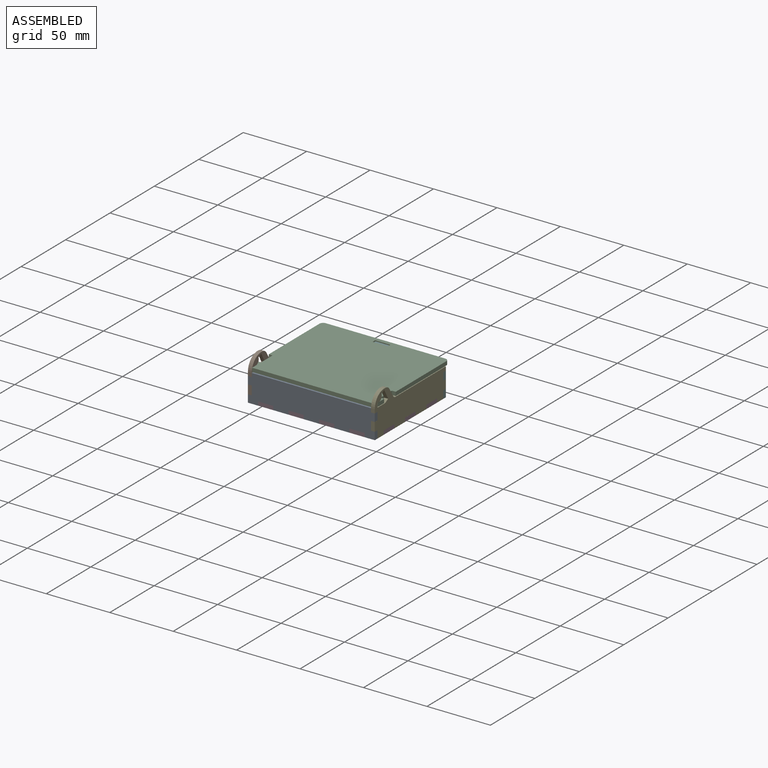
[diagram: assembled view]
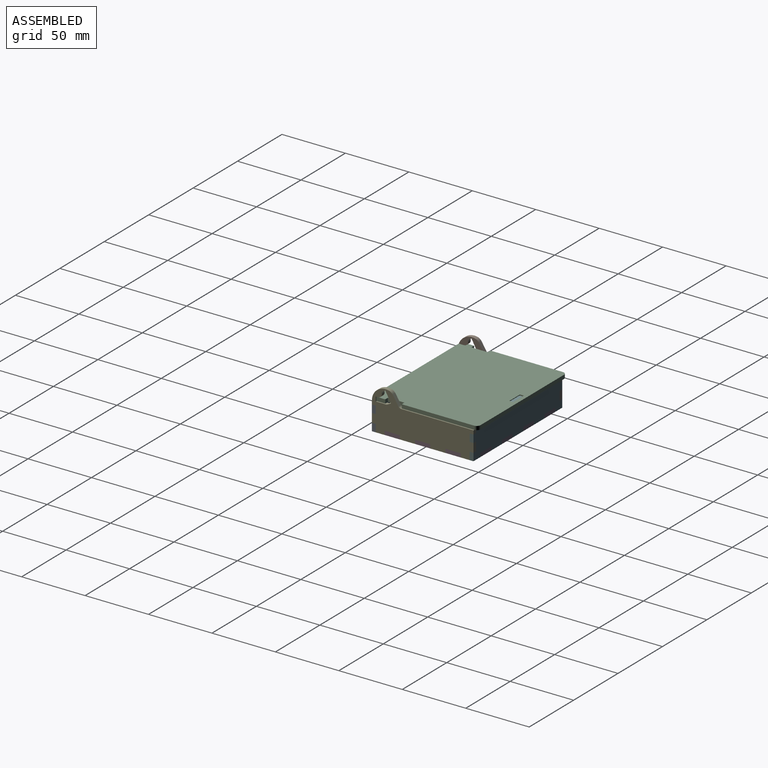
[diagram: assembled view, second angle]
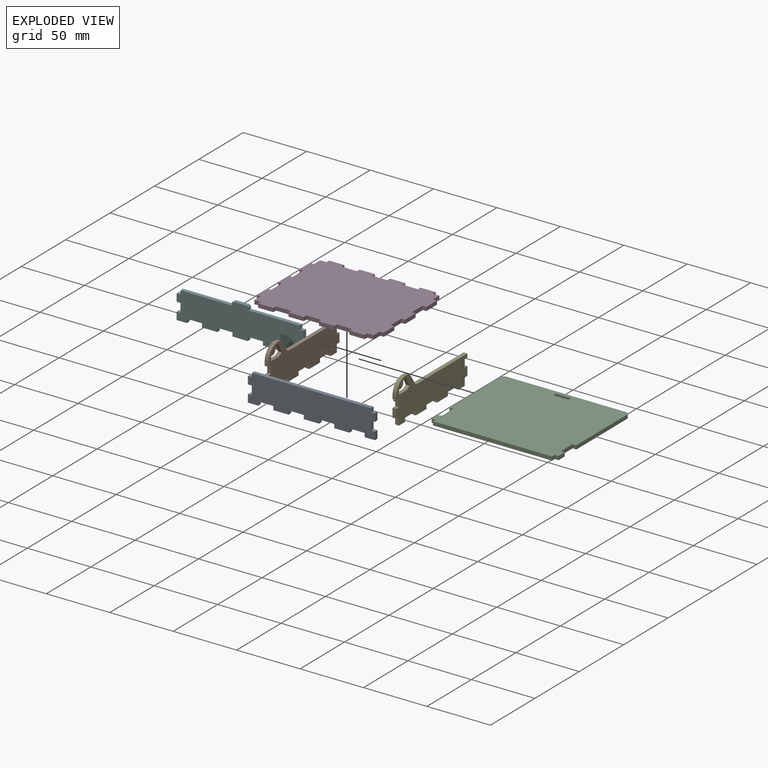
[diagram: exploded view]
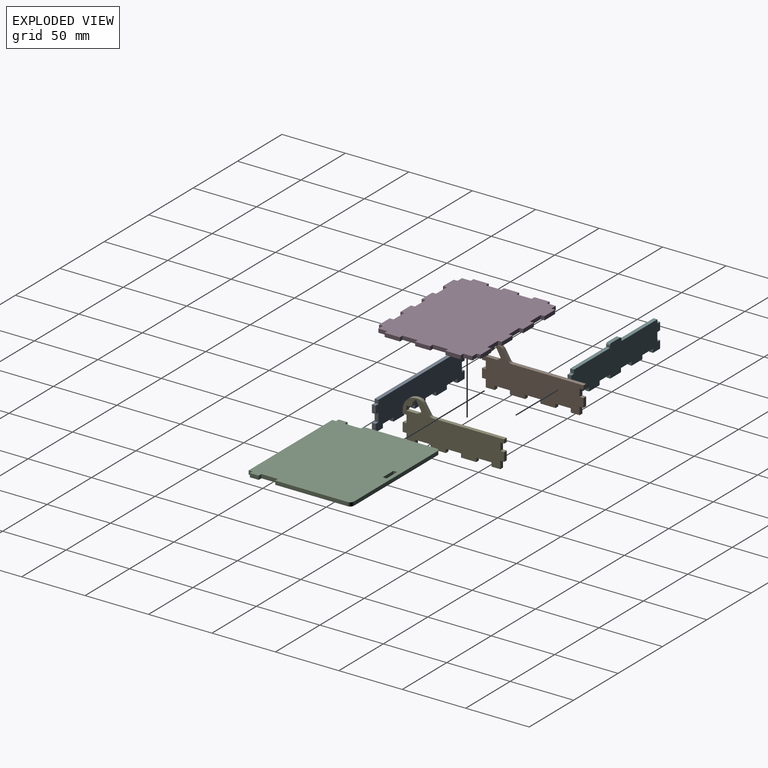
[diagram: exploded view, second angle]
ASSEMBLY  parts=6 mates=5
PART A: 34 faces, bbox 22x100x3 mm
  f0: plane 12x3mm, normal (-1,0,0), area 36mm2, adj f1,f31,f32,f33
  f1: plane 3x3mm, normal (0,1,0), area 9mm2, adj f0,f2,f32,f33
  f2: plane 12x3mm, normal (-1,0,0), area 36mm2, adj f1,f3,f32,f33
  f3: plane 3x3mm, normal (0,-1,0), area 9mm2, adj f2,f4,f32,f33
  f4: plane 12x3mm, normal (-1,0,0), area 36mm2, adj f3,f5,f32,f33
  f5: plane 3x3mm, normal (0,1,0), area 9mm2, adj f4,f6,f32,f33
  f6: plane 12x3mm, normal (-1,0,0), area 36mm2, adj f5,f7,f32,f33
  f7: plane 3x3mm, normal (0,-1,0), area 9mm2, adj f6,f8,f32,f33
  f8: plane 12x3mm, normal (-1,0,0), area 36mm2, adj f7,f9,f32,f33
  f9: plane 3x3mm, normal (0,1,0), area 9mm2, adj f8,f10,f32,f33
  f10: plane 8x3mm, normal (-1,0,0), area 24mm2, adj f9,f11,f32,f33
  f11: plane 6x3mm, normal (0,-1,0), area 18mm2, adj f10,f12,f32,f33
  f12: plane 3x3mm, normal (1,0,0), area 9mm2, adj f11,f13,f32,f33
  f13: plane 7x3mm, normal (0,-1,0), area 21mm2, adj f12,f14,f32,f33
  f14: plane 3x3mm, normal (-1,0,0), area 9mm2, adj f13,f15,f32,f33
  f15: plane 6x3mm, normal (0,-1,0), area 18mm2, adj f14,f16,f32,f33
  f16: plane 3x3mm, normal (1,0,0), area 9mm2, adj f15,f17,f32,f33
  f17: plane 3x3mm, normal (0,-1,0), area 9mm2, adj f16,f18,f32,f33
  f18: plane 94x3mm, normal (1,0,0), area 282mm2, adj f17,f19,f32,f33
  f19: plane 3x3mm, normal (0,1,0), area 9mm2, adj f18,f20,f32,f33
  f20: plane 3x3mm, normal (1,0,0), area 9mm2, adj f19,f21,f32,f33
  f21: plane 6x3mm, normal (0,1,0), area 18mm2, adj f20,f22,f32,f33
  f22: plane 3x3mm, normal (-1,0,0), area 9mm2, adj f21,f23,f32,f33
  f23: plane 7x3mm, normal (0,1,0), area 21mm2, adj f22,f24,f32,f33
  f24: plane 3x3mm, normal (1,0,0), area 9mm2, adj f23,f25,f32,f33
  f25: plane 6x3mm, normal (0,1,0), area 18mm2, adj f24,f26,f32,f33
  f26: plane 8x3mm, normal (-1,0,0), area 24mm2, adj f25,f27,f32,f33
  f27: plane 3x3mm, normal (0,-1,0), area 9mm2, adj f26,f28,f32,f33
  f28: plane 12x3mm, normal (-1,0,0), area 36mm2, adj f27,f29,f32,f33
  f29: plane 3x3mm, normal (0,1,0), area 9mm2, adj f28,f30,f32,f33
  f30: plane 12x3mm, normal (-1,0,0), area 36mm2, adj f29,f31,f32,f33
  f31: plane 3x3mm, normal (0,-1,0), area 9mm2, adj f0,f30,f32,f33
  f32: plane 100x22mm, normal (0,0,1), area 1996mm2, adj f0,f1,f2,f3,f4,f5,f6,f7
  f33: plane 100x22mm, normal (0,0,-1), area 1996mm2, adj f0,f1,f2,f3,f4,f5,f6,f7
PART B: 41 faces, bbox 32.8x80x3 mm
  f0: plane 3.5x3mm, normal (0,1,0), area 10.5mm2, adj f1,f38,f39,f40
  f1: plane 8.7x3mm, normal (-1,0,0), area 26.1mm2, adj f0,f2,f39,f40
  f2: plane 3.27x3mm, normal (-0.88,-0.48,0), area 11.2mm2, adj f1,f3,f39,f40
  f3: plane 8x4.38mm, normal (0.48,-0.88,0), area 27.4mm2, adj f2,f4,f39,f40
  f4: plane 3.07x3mm, normal (0.88,0.48,0), area 10.5mm2, adj f3,f5,f39,f40
  f5: cylinder r=3.19mm len=4.61mm, axis (0,0,1), area 19.4mm2, adj f4,f38,f39,f40
  f6: plane 3x3mm, normal (0,-1,0), area 9mm2, adj f7,f37,f39,f40
  f7: plane 12x3mm, normal (1,0,0), area 36mm2, adj f6,f8,f39,f40
  f8: plane 3x3mm, normal (0,1,0), area 9mm2, adj f7,f9,f39,f40
  f9: plane 12x3mm, normal (1,0,0), area 36mm2, adj f8,f10,f39,f40
  f10: plane 3x3mm, normal (0,-1,0), area 9mm2, adj f9,f11,f39,f40
  f11: plane 12x3mm, normal (1,0,0), area 36mm2, adj f10,f12,f39,f40
  f12: plane 3x3mm, normal (0,1,0), area 9mm2, adj f11,f13,f39,f40
  f13: plane 12x3mm, normal (1,0,0), area 36mm2, adj f12,f14,f39,f40
  f14: plane 3x3mm, normal (0,-1,0), area 9mm2, adj f13,f15,f39,f40
  f15: plane 12x3mm, normal (1,0,0), area 36mm2, adj f14,f16,f39,f40
  f16: plane 3x3mm, normal (0,1,0), area 9mm2, adj f15,f17,f39,f40
  f17: plane 7x3mm, normal (1,0,0), area 21mm2, adj f16,f18,f39,f40
  f18: plane 6x3mm, normal (0,-1,0), area 18mm2, adj f17,f19,f39,f40
  f19: plane 3x3mm, normal (1,0,0), area 9mm2, adj f18,f20,f39,f40
  f20: plane 7x3mm, normal (0,-1,0), area 21mm2, adj f19,f21,f39,f40
  f21: plane 3x3mm, normal (-1,0,0), area 9mm2, adj f20,f22,f39,f40
  f22: plane 6x3mm, normal (0,-1,0), area 18mm2, adj f21,f23,f39,f40
  f23: plane 3x3mm, normal (1,0,0), area 9mm2, adj f22,f24,f39,f40
  f24: plane 3x3mm, normal (0,-1,0), area 9mm2, adj f23,f25,f39,f40
  f25: cylinder r=10.81mm len=13.37mm, axis (0,0,1), area 58.7mm2, adj f24,f26,f39,f40
  f26: cylinder r=5mm len=3.05mm, axis (0,0,1), area 11.6mm2, adj f25,f27,f39,f40
  f27: plane 7.01x4.41mm, normal (-0.53,0.85,0), area 24.9mm2, adj f26,f28,f39,f40
  f28: cylinder r=2.79mm len=3mm, axis (0,0,1), area 7.9mm2, adj f27,f29,f39,f40
  f29: plane 56.98x3mm, normal (-1,0,0), area 170.9mm2, adj f28,f30,f39,f40
  f30: plane 3x3mm, normal (0,1,0), area 9mm2, adj f29,f31,f39,f40
  f31: plane 3x3mm, normal (1,0,0), area 9mm2, adj f30,f32,f39,f40
  f32: plane 6x3mm, normal (0,1,0), area 18mm2, adj f31,f33,f39,f40
  f33: plane 3x3mm, normal (-1,0,0), area 9mm2, adj f32,f34,f39,f40
  f34: plane 7x3mm, normal (0,1,0), area 21mm2, adj f33,f35,f39,f40
  f35: plane 3x3mm, normal (1,0,0), area 9mm2, adj f34,f36,f39,f40
  f36: plane 6x3mm, normal (0,1,0), area 18mm2, adj f35,f37,f39,f40
  f37: plane 7x3mm, normal (1,0,0), area 21mm2, adj f6,f36,f39,f40
  f38: plane 3x1.66mm, normal (1,0,0), area 5mm2, adj f0,f5,f39,f40
  f39: plane 80x32.81mm, normal (0,0,-1), area 1684.4mm2, adj f0,f1,f2,f3,f4,f5,f6,f7
  f40: plane 80x32.81mm, normal (0,0,1), area 1684.4mm2, adj f0,f1,f2,f3,f4,f5,f6,f7
PART C: 24 faces, bbox 100x83x3 mm
  f0: plane 3x3mm, normal (0,-1,0), area 9mm2, adj f1,f21,f22,f23
  f1: plane 3x3mm, normal (-1,0,0), area 9mm2, adj f0,f2,f22,f23
  f2: plane 94x3mm, normal (0,-1,0), area 282mm2, adj f1,f3,f22,f23
  f3: plane 3x3mm, normal (1,0,0), area 9mm2, adj f2,f4,f22,f23
  f4: plane 3x3mm, normal (0,-1,0), area 9mm2, adj f3,f5,f22,f23
  f5: plane 7x3mm, normal (1,0,0), area 21mm2, adj f4,f6,f22,f23
  f6: plane 3x3mm, normal (0,1,0), area 9mm2, adj f5,f7,f22,f23
  f7: plane 13.02x3mm, normal (1,0,0), area 39.1mm2, adj f6,f8,f22,f23
  f8: plane 3x3mm, normal (0,-1,0), area 9mm2, adj f7,f9,f22,f23
  f9: plane 56.98x3mm, normal (1,0,0), area 170.9mm2, adj f8,f10,f22,f23
  f10: cylinder r=3mm len=3mm, axis (0,0,-1), area 14.1mm2, adj f9,f11,f22,f23
  f11: plane 94x3mm, normal (0,1,0), area 282mm2, adj f10,f12,f22,f23
  f12: cylinder r=3mm len=3mm, axis (0,0,-1), area 14.1mm2, adj f11,f13,f22,f23
  f13: plane 56.98x3mm, normal (-1,0,0), area 170.9mm2, adj f12,f14,f22,f23
  f14: plane 3x3mm, normal (0,-1,0), area 9mm2, adj f13,f15,f22,f23
  f15: plane 13.02x3mm, normal (-1,0,0), area 39.1mm2, adj f14,f16,f22,f23
  f16: plane 3x3mm, normal (0,1,0), area 9mm2, adj f15,f21,f22,f23
  f17: plane 3x3mm, normal (1,0,0), area 9mm2, adj f18,f20,f22,f23
  f18: plane 12x3mm, normal (0,-1,0), area 36mm2, adj f17,f19,f22,f23
  f19: plane 3x3mm, normal (-1,0,0), area 9mm2, adj f18,f20,f22,f23
  f20: plane 12x3mm, normal (0,1,0), area 36mm2, adj f17,f19,f22,f23
  f21: plane 7x3mm, normal (-1,0,0), area 21mm2, adj f0,f16,f22,f23
  f22: plane 100x83mm, normal (0,0,1), area 8164mm2, adj f0,f1,f2,f3,f4,f5,f6,f7
  f23: plane 100x83mm, normal (0,0,-1), area 8164mm2, adj f0,f1,f2,f3,f4,f5,f6,f7
PART D: 62 faces, bbox 100x80x3 mm
  f0: plane 5x3mm, normal (0,1,0), area 15mm2, adj f1,f59,f60,f61
  f1: plane 3x3mm, normal (1,0,0), area 9mm2, adj f0,f2,f60,f61
  f2: plane 12x3mm, normal (0,1,0), area 36mm2, adj f1,f3,f60,f61
  f3: plane 3x3mm, normal (-1,0,0), area 9mm2, adj f2,f4,f60,f61
  f4: plane 12x3mm, normal (0,1,0), area 36mm2, adj f3,f5,f60,f61
  f5: plane 3x3mm, normal (1,0,0), area 9mm2, adj f4,f6,f60,f61
  f6: plane 12x3mm, normal (0,1,0), area 36mm2, adj f5,f7,f60,f61
  f7: plane 3x3mm, normal (-1,0,0), area 9mm2, adj f6,f8,f60,f61
  f8: plane 12x3mm, normal (0,1,0), area 36mm2, adj f7,f9,f60,f61
  f9: plane 3x3mm, normal (1,0,0), area 9mm2, adj f8,f10,f60,f61
  f10: plane 12x3mm, normal (0,1,0), area 36mm2, adj f9,f11,f60,f61
  f11: plane 3x3mm, normal (-1,0,0), area 9mm2, adj f10,f12,f60,f61
  f12: plane 12x3mm, normal (0,1,0), area 36mm2, adj f11,f13,f60,f61
  f13: plane 3x3mm, normal (1,0,0), area 9mm2, adj f12,f14,f60,f61
  f14: plane 12x3mm, normal (0,1,0), area 36mm2, adj f13,f15,f60,f61
  f15: plane 3x3mm, normal (-1,0,0), area 9mm2, adj f14,f16,f60,f61
  f16: plane 5x3mm, normal (0,1,0), area 15mm2, adj f15,f17,f60,f61
  f17: plane 7x3mm, normal (-1,0,0), area 21mm2, adj f16,f18,f60,f61
  f18: plane 3x3mm, normal (0,1,0), area 9mm2, adj f17,f19,f60,f61
  f19: plane 12x3mm, normal (-1,0,0), area 36mm2, adj f18,f20,f60,f61
  f20: plane 3x3mm, normal (0,-1,0), area 9mm2, adj f19,f21,f60,f61
  f21: plane 12x3mm, normal (-1,0,0), area 36mm2, adj f20,f22,f60,f61
  f22: plane 3x3mm, normal (0,1,0), area 9mm2, adj f21,f23,f60,f61
  f23: plane 12x3mm, normal (-1,0,0), area 36mm2, adj f22,f24,f60,f61
  f24: plane 3x3mm, normal (0,-1,0), area 9mm2, adj f23,f25,f60,f61
  f25: plane 12x3mm, normal (-1,0,0), area 36mm2, adj f24,f26,f60,f61
  f26: plane 3x3mm, normal (0,1,0), area 9mm2, adj f25,f27,f60,f61
  f27: plane 12x3mm, normal (-1,0,0), area 36mm2, adj f26,f28,f60,f61
  f28: plane 3x3mm, normal (0,-1,0), area 9mm2, adj f27,f29,f60,f61
  f29: plane 7x3mm, normal (-1,0,0), area 21mm2, adj f28,f30,f60,f61
  f30: plane 5x3mm, normal (0,-1,0), area 15mm2, adj f29,f31,f60,f61
  f31: plane 3x3mm, normal (-1,0,0), area 9mm2, adj f30,f32,f60,f61
  f32: plane 12x3mm, normal (0,-1,0), area 36mm2, adj f31,f33,f60,f61
  f33: plane 3x3mm, normal (1,0,0), area 9mm2, adj f32,f34,f60,f61
  f34: plane 12x3mm, normal (0,-1,0), area 36mm2, adj f33,f35,f60,f61
  f35: plane 3x3mm, normal (-1,0,0), area 9mm2, adj f34,f36,f60,f61
  f36: plane 12x3mm, normal (0,-1,0), area 36mm2, adj f35,f37,f60,f61
  f37: plane 3x3mm, normal (1,0,0), area 9mm2, adj f36,f38,f60,f61
  f38: plane 12x3mm, normal (0,-1,0), area 36mm2, adj f37,f39,f60,f61
  f39: plane 3x3mm, normal (-1,0,0), area 9mm2, adj f38,f40,f60,f61
  f40: plane 12x3mm, normal (0,-1,0), area 36mm2, adj f39,f41,f60,f61
  f41: plane 3x3mm, normal (1,0,0), area 9mm2, adj f40,f42,f60,f61
  f42: plane 12x3mm, normal (0,-1,0), area 36mm2, adj f41,f43,f60,f61
  f43: plane 3x3mm, normal (-1,0,0), area 9mm2, adj f42,f44,f60,f61
  f44: plane 12x3mm, normal (0,-1,0), area 36mm2, adj f43,f45,f60,f61
  f45: plane 3x3mm, normal (1,0,0), area 9mm2, adj f44,f46,f60,f61
  f46: plane 5x3mm, normal (0,-1,0), area 15mm2, adj f45,f47,f60,f61
  f47: plane 7x3mm, normal (1,0,0), area 21mm2, adj f46,f48,f60,f61
  f48: plane 3x3mm, normal (0,-1,0), area 9mm2, adj f47,f49,f60,f61
  f49: plane 12x3mm, normal (1,0,0), area 36mm2, adj f48,f50,f60,f61
  f50: plane 3x3mm, normal (0,1,0), area 9mm2, adj f49,f51,f60,f61
  f51: plane 12x3mm, normal (1,0,0), area 36mm2, adj f50,f52,f60,f61
  f52: plane 3x3mm, normal (0,-1,0), area 9mm2, adj f51,f53,f60,f61
  f53: plane 12x3mm, normal (1,0,0), area 36mm2, adj f52,f54,f60,f61
  f54: plane 3x3mm, normal (0,1,0), area 9mm2, adj f53,f55,f60,f61
  f55: plane 12x3mm, normal (1,0,0), area 36mm2, adj f54,f56,f60,f61
  f56: plane 3x3mm, normal (0,-1,0), area 9mm2, adj f55,f57,f60,f61
  f57: plane 12x3mm, normal (1,0,0), area 36mm2, adj f56,f58,f60,f61
  f58: plane 3x3mm, normal (0,1,0), area 9mm2, adj f57,f59,f60,f61
  f59: plane 7x3mm, normal (1,0,0), area 21mm2, adj f0,f58,f60,f61
  f60: plane 100x80mm, normal (0,0,1), area 7460mm2, adj f0,f1,f2,f3,f4,f5,f6,f7
  f61: plane 100x80mm, normal (0,0,-1), area 7460mm2, adj f0,f1,f2,f3,f4,f5,f6,f7
PART E: 41 faces, bbox 32.8x80x3 mm
  f0: plane 3.5x3mm, normal (0,1,0), area 10.5mm2, adj f1,f38,f39,f40
  f1: plane 8.7x3mm, normal (1,0,0), area 26.1mm2, adj f0,f2,f39,f40
  f2: plane 3.27x3mm, normal (0.88,-0.48,0), area 11.2mm2, adj f1,f3,f39,f40
  f3: plane 8x4.38mm, normal (-0.48,-0.88,0), area 27.4mm2, adj f2,f4,f39,f40
  f4: plane 3.07x3mm, normal (-0.88,0.48,0), area 10.5mm2, adj f3,f5,f39,f40
  f5: cylinder r=3.19mm len=4.61mm, axis (0,0,-1), area 19.4mm2, adj f4,f38,f39,f40
  f6: plane 3x3mm, normal (0,-1,0), area 9mm2, adj f7,f37,f39,f40
  f7: plane 12x3mm, normal (-1,0,0), area 36mm2, adj f6,f8,f39,f40
  f8: plane 3x3mm, normal (0,1,0), area 9mm2, adj f7,f9,f39,f40
  f9: plane 12x3mm, normal (-1,0,0), area 36mm2, adj f8,f10,f39,f40
  f10: plane 3x3mm, normal (0,-1,0), area 9mm2, adj f9,f11,f39,f40
  f11: plane 12x3mm, normal (-1,0,0), area 36mm2, adj f10,f12,f39,f40
  f12: plane 3x3mm, normal (0,1,0), area 9mm2, adj f11,f13,f39,f40
  f13: plane 12x3mm, normal (-1,0,0), area 36mm2, adj f12,f14,f39,f40
  f14: plane 3x3mm, normal (0,-1,0), area 9mm2, adj f13,f15,f39,f40
  f15: plane 12x3mm, normal (-1,0,0), area 36mm2, adj f14,f16,f39,f40
  f16: plane 3x3mm, normal (0,1,0), area 9mm2, adj f15,f17,f39,f40
  f17: plane 7x3mm, normal (-1,0,0), area 21mm2, adj f16,f18,f39,f40
  f18: plane 6x3mm, normal (0,-1,0), area 18mm2, adj f17,f19,f39,f40
  f19: plane 3x3mm, normal (-1,0,0), area 9mm2, adj f18,f20,f39,f40
  f20: plane 7x3mm, normal (0,-1,0), area 21mm2, adj f19,f21,f39,f40
  f21: plane 3x3mm, normal (1,0,0), area 9mm2, adj f20,f22,f39,f40
  f22: plane 6x3mm, normal (0,-1,0), area 18mm2, adj f21,f23,f39,f40
  f23: plane 3x3mm, normal (-1,0,0), area 9mm2, adj f22,f24,f39,f40
  f24: plane 3x3mm, normal (0,-1,0), area 9mm2, adj f23,f25,f39,f40
  f25: cylinder r=10.81mm len=13.37mm, axis (0,0,-1), area 58.7mm2, adj f24,f26,f39,f40
  f26: cylinder r=5mm len=3.05mm, axis (0,0,-1), area 11.6mm2, adj f25,f27,f39,f40
  f27: plane 7.01x4.41mm, normal (0.53,0.85,0), area 24.9mm2, adj f26,f28,f39,f40
  f28: cylinder r=2.79mm len=3mm, axis (0,0,-1), area 7.9mm2, adj f27,f29,f39,f40
  f29: plane 56.98x3mm, normal (1,0,0), area 170.9mm2, adj f28,f30,f39,f40
  f30: plane 3x3mm, normal (0,1,0), area 9mm2, adj f29,f31,f39,f40
  f31: plane 3x3mm, normal (-1,0,0), area 9mm2, adj f30,f32,f39,f40
  f32: plane 6x3mm, normal (0,1,0), area 18mm2, adj f31,f33,f39,f40
  f33: plane 3x3mm, normal (1,0,0), area 9mm2, adj f32,f34,f39,f40
  f34: plane 7x3mm, normal (0,1,0), area 21mm2, adj f33,f35,f39,f40
  f35: plane 3x3mm, normal (-1,0,0), area 9mm2, adj f34,f36,f39,f40
  f36: plane 6x3mm, normal (0,1,0), area 18mm2, adj f35,f37,f39,f40
  f37: plane 7x3mm, normal (-1,0,0), area 21mm2, adj f6,f36,f39,f40
  f38: plane 3x1.66mm, normal (-1,0,0), area 5mm2, adj f0,f5,f39,f40
  f39: plane 80x32.81mm, normal (0,0,1), area 1684.4mm2, adj f0,f1,f2,f3,f4,f5,f6,f7
  f40: plane 80x32.81mm, normal (0,0,-1), area 1684.4mm2, adj f0,f1,f2,f3,f4,f5,f6,f7
PART F: 40 faces, bbox 25x100x3 mm
  f0: plane 12x3mm, normal (-1,0,0), area 36mm2, adj f1,f37,f38,f39
  f1: plane 3x3mm, normal (0,-1,0), area 9mm2, adj f0,f2,f38,f39
  f2: plane 12x3mm, normal (-1,0,0), area 36mm2, adj f1,f3,f38,f39
  f3: plane 3x3mm, normal (0,1,0), area 9mm2, adj f2,f4,f38,f39
  f4: plane 8x3mm, normal (-1,0,0), area 24mm2, adj f3,f5,f38,f39
  f5: plane 6x3mm, normal (0,-1,0), area 18mm2, adj f4,f6,f38,f39
  f6: plane 3x3mm, normal (1,0,0), area 9mm2, adj f5,f7,f38,f39
  f7: plane 7x3mm, normal (0,-1,0), area 21mm2, adj f6,f8,f38,f39
  f8: plane 3x3mm, normal (-1,0,0), area 9mm2, adj f7,f9,f38,f39
  f9: plane 6x3mm, normal (0,-1,0), area 18mm2, adj f8,f10,f38,f39
  f10: plane 3x3mm, normal (1,0,0), area 9mm2, adj f9,f11,f38,f39
  f11: plane 3x3mm, normal (0,-1,0), area 9mm2, adj f10,f12,f38,f39
  f12: plane 40.5x3mm, normal (1,0,0), area 121.5mm2, adj f11,f13,f38,f39
  f13: plane 3x1.5mm, normal (0,-1,0), area 4.5mm2, adj f12,f14,f38,f39
  f14: cylinder r=1.5mm len=3mm, axis (0,0,-1), area 7.1mm2, adj f13,f15,f38,f39
  f15: plane 10x3mm, normal (1,0,0), area 30mm2, adj f14,f16,f38,f39
  f16: cylinder r=1.5mm len=3mm, axis (0,0,-1), area 7.1mm2, adj f15,f17,f38,f39
  f17: plane 3x1.5mm, normal (0,1,0), area 4.5mm2, adj f16,f18,f38,f39
  f18: plane 40.5x3mm, normal (1,0,0), area 121.5mm2, adj f17,f19,f38,f39
  f19: plane 3x3mm, normal (0,1,0), area 9mm2, adj f18,f20,f38,f39
  f20: plane 3x3mm, normal (1,0,0), area 9mm2, adj f19,f21,f38,f39
  f21: plane 6x3mm, normal (0,1,0), area 18mm2, adj f20,f22,f38,f39
  f22: plane 3x3mm, normal (-1,0,0), area 9mm2, adj f21,f23,f38,f39
  f23: plane 7x3mm, normal (0,1,0), area 21mm2, adj f22,f24,f38,f39
  f24: plane 3x3mm, normal (1,0,0), area 9mm2, adj f23,f25,f38,f39
  f25: plane 6x3mm, normal (0,1,0), area 18mm2, adj f24,f26,f38,f39
  f26: plane 8x3mm, normal (-1,0,0), area 24mm2, adj f25,f27,f38,f39
  f27: plane 3x3mm, normal (0,-1,0), area 9mm2, adj f26,f28,f38,f39
  f28: plane 12x3mm, normal (-1,0,0), area 36mm2, adj f27,f29,f38,f39
  f29: plane 3x3mm, normal (0,1,0), area 9mm2, adj f28,f30,f38,f39
  f30: plane 12x3mm, normal (-1,0,0), area 36mm2, adj f29,f31,f38,f39
  f31: plane 3x3mm, normal (0,-1,0), area 9mm2, adj f30,f32,f38,f39
  f32: plane 12x3mm, normal (-1,0,0), area 36mm2, adj f31,f33,f38,f39
  f33: plane 3x3mm, normal (0,1,0), area 9mm2, adj f32,f34,f38,f39
  f34: plane 12x3mm, normal (-1,0,0), area 36mm2, adj f33,f35,f38,f39
  f35: plane 3x3mm, normal (0,-1,0), area 9mm2, adj f34,f36,f38,f39
  f36: plane 12x3mm, normal (-1,0,0), area 36mm2, adj f35,f37,f38,f39
  f37: plane 3x3mm, normal (0,1,0), area 9mm2, adj f0,f36,f38,f39
  f38: plane 100x25mm, normal (0,0,1), area 2034mm2, adj f0,f1,f2,f3,f4,f5,f6,f7
  f39: plane 100x25mm, normal (0,0,-1), area 2034mm2, adj f0,f1,f2,f3,f4,f5,f6,f7
PLACE A rot(axis=(-0.58,-0.58,-0.58),120deg) t=(90.26,-39.79,-74.76)mm
PLACE B rot(axis=(0,1,0),90deg) t=(-55.32,-2,-74.76)mm
PLACE C rot(axis=(-0.91,0.39,0.13),0deg) t=(-199.62,-1.53,28.52)mm
PLACE D t=(-7.18,-2,6.02)mm fixed
PLACE E rot(axis=(0,-1,0),90deg) t=(41.68,-2,-74.76)mm
PLACE F rot(axis=(0.58,-0.58,0.58),120deg) t=(107.11,40.21,-74.76)mm
MATE fastened A.f27 <-> D.f45  axis (-1,0,0) through (33.68,-38.29,7.52)mm
MATE fastened E.f8 <-> D.f56  axis (0,1,0) through (40.18,18.21,7.52)mm
MATE planar C.f15 <-> B.f40  axis (-1,0,0) through (-55.32,-22.81,30.02)mm
MATE fastened B.f14 <-> D.f26  axis (0,-1,0) through (-56.82,-17.79,7.52)mm
MATE fastened F.f3 <-> D.f1  axis (-1,0,0) through (33.68,38.71,7.52)mm
